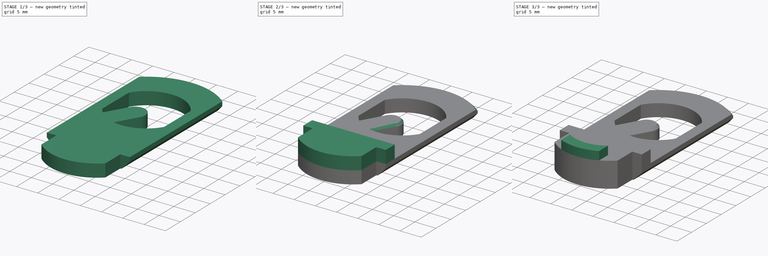
[diagram: build sequence overview — one tinted view per stage of 3, left to right]
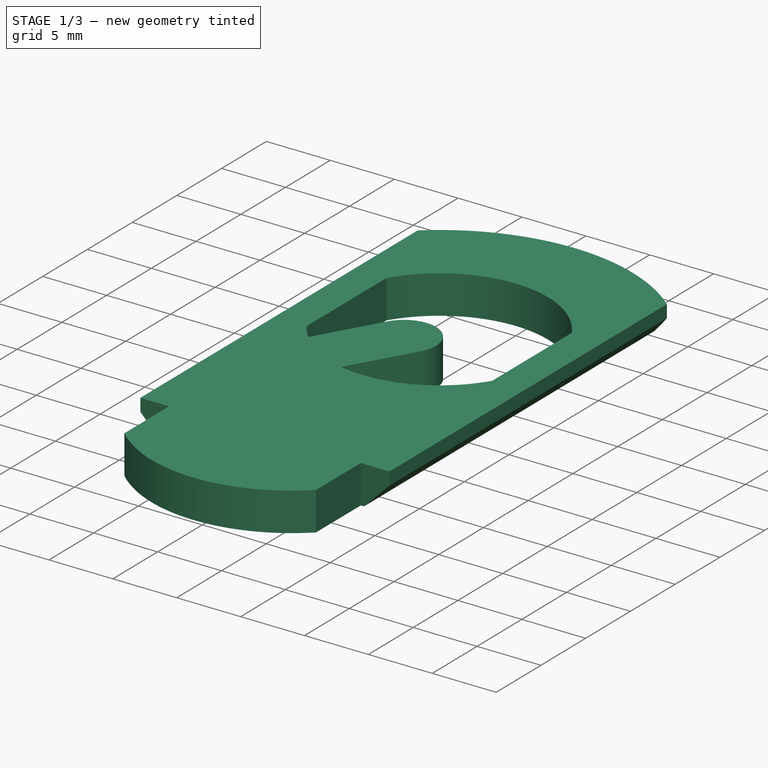
[diagram: stage 1 of 3 — iso view after this stage's code; geometry added in this stage tinted green]
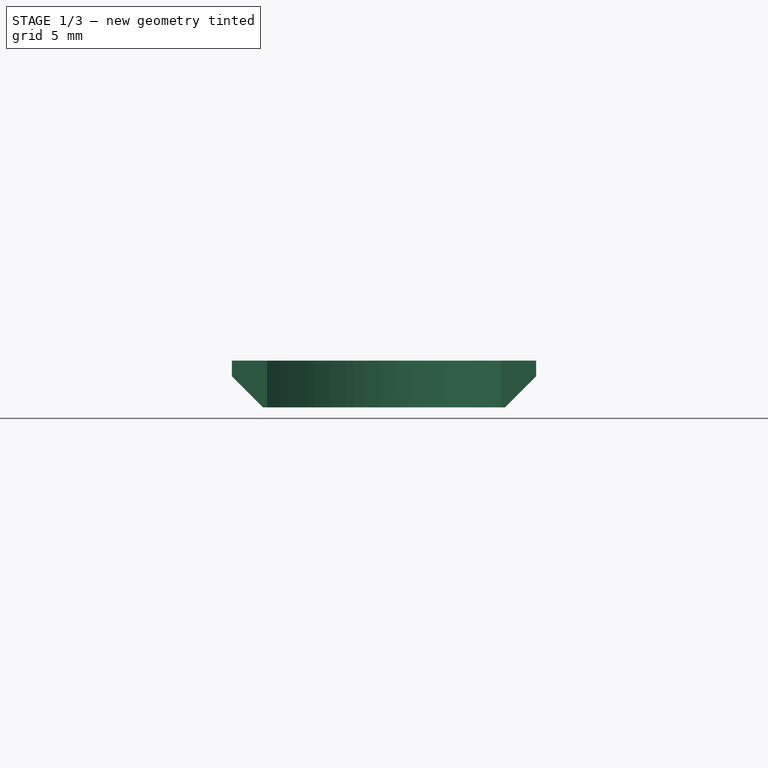
[diagram: stage 1 of 3 — front view after this stage's code; geometry added in this stage tinted green]
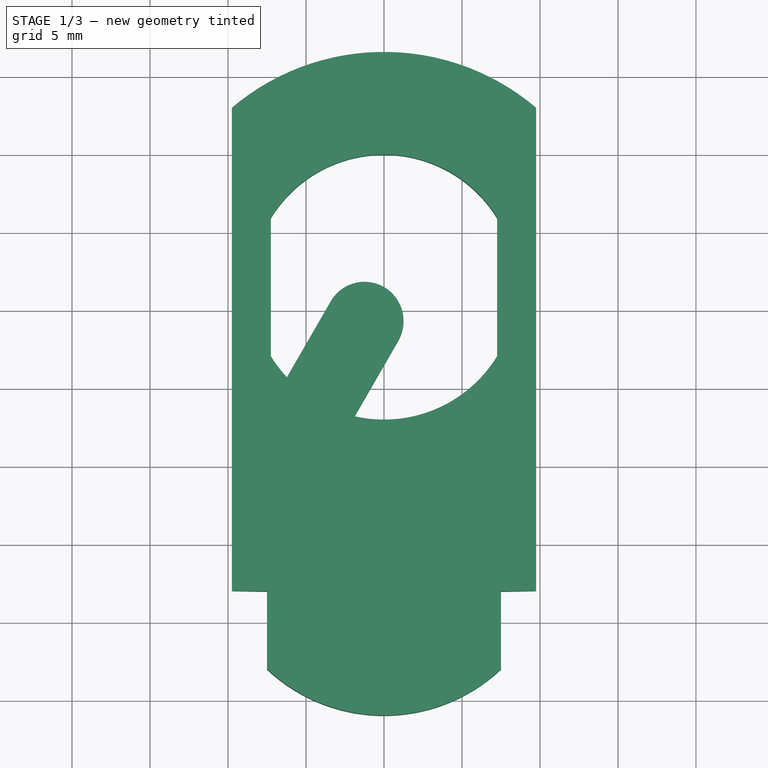
[diagram: stage 1 of 3 — top view after this stage's code; geometry added in this stage tinted green]
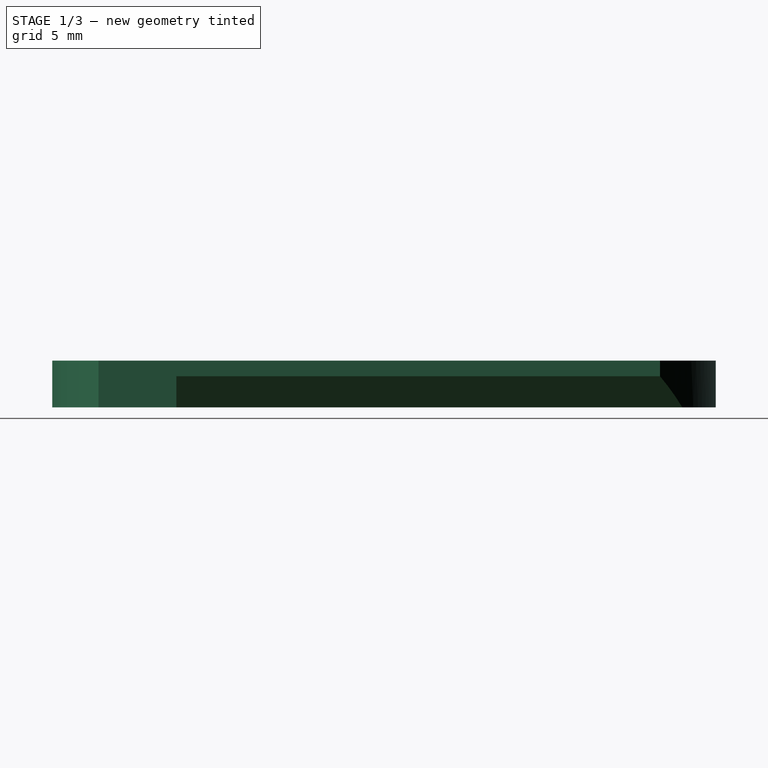
[diagram: stage 1 of 3 — right view after this stage's code; geometry added in this stage tinted green]
FCSTD DOCUMENT  (FreeCAD 0.17R13528 (Git))
Label: dic slider
License: All rights reserved
LicenseURL: http://en.wikipedia.org/wiki/All_rights_reserved
objects: Sketcher::SketchObject×3, Part::Extrusion×3, Part::Chamfer×2, PartDesign::Body×1, Part::MultiFuse×1
note: 10 computed .brp shape members not serialized (recipe doc carries the construction recipe); baked Part::Feature solids carry a one-line shape summary decoded from their .brp

FEATURE [Sketcher::SketchObject] Sketch
  MapMode = 5
  Support = -> [XY_Plane]
  sketch-geometry (22):
    g0: LineSegment [constr] StartX=-9.75 StartY=28 StartZ=0 EndX=9.75 EndY=28 EndZ=0
    g1: LineSegment StartX=9.75 StartY=28 StartZ=0 EndX=9.75 EndY=0 EndZ=0
    g2: LineSegment [constr] StartX=9.75 StartY=0 StartZ=0 EndX=-9.75 EndY=0 EndZ=0
    g3: LineSegment StartX=-9.75 StartY=0 StartZ=0 EndX=-9.75 EndY=28 EndZ=0
    g4: ArcOfCircle CenterX=0 CenterY=16.5 CenterZ=0 NormalX=0 NormalY=0 NormalZ=1 AngleXU=0 Radius=8.5 StartAngle=0.549202 EndAngle=2.59239
    g5: ArcOfCircle CenterX=0 CenterY=16.5 CenterZ=0 NormalX=0 NormalY=0 NormalZ=1 AngleXU=0 Radius=15.0769 StartAngle=0.867566 EndAngle=2.27403
    g6: LineSegment StartX=-7.25 StartY=20.9371 StartZ=0 EndX=-7.25 EndY=12.0629 EndZ=0
    g7: LineSegment StartX=7.25 StartY=20.9371 StartZ=0 EndX=7.25 EndY=12.0629 EndZ=0
    g8: ArcOfCircle CenterX=0 CenterY=16.5 CenterZ=0 NormalX=0 NormalY=0 NormalZ=1 AngleXU=0 Radius=8.5 StartAngle=3.69079 EndAngle=3.89026
    g9: LineSegment StartX=-9.75 StartY=0 StartZ=0 EndX=-9.75 EndY=-3 EndZ=0
    g10: LineSegment StartX=-9.75 StartY=-3 StartZ=0 EndX=-7.5 EndY=-3 EndZ=0
    g11: LineSegment StartX=-7.5 StartY=-3 StartZ=0 EndX=-7.5 EndY=-8 EndZ=0
    g12: LineSegment [constr] StartX=-7.5 StartY=-8 StartZ=0 EndX=7.5 EndY=-8 EndZ=0
    g13: LineSegment StartX=7.5 StartY=-8 StartZ=0 EndX=7.5 EndY=-3 EndZ=0
    g14: LineSegment StartX=7.5 StartY=-3 StartZ=0 EndX=9.75 EndY=-3 EndZ=0
    g15: LineSegment StartX=9.75 StartY=-3 StartZ=0 EndX=9.75 EndY=0 EndZ=0
    g16: ArcOfCircle CenterX=0 CenterY=0 CenterZ=0 NormalX=0 NormalY=0 NormalZ=1 AngleXU=0 Radius=10.9659 StartAngle=3.95924 EndAngle=5.46554
    g17: LineSegment [constr] StartX=0 StartY=16.5 StartZ=0 EndX=-4.25 EndY=9.13878 EndZ=0
    g18: ArcOfCircle CenterX=-1.25 CenterY=14.3349 CenterZ=0 NormalX=0 NormalY=0 NormalZ=1 AngleXU=0 Radius=2.5 StartAngle=5.75959 EndAngle=8.90118
    g19: ArcOfCircle CenterX=0 CenterY=16.5 CenterZ=0 NormalX=0 NormalY=0 NormalZ=1 AngleXU=0 Radius=8.5 StartAngle=4.48732 EndAngle=5.73398
    g20: LineSegment StartX=-3.41506 StartY=15.5849 StartZ=0 EndX=-6.22708 EndY=10.7144 EndZ=0
    g21: LineSegment StartX=0.915063 StartY=13.0849 StartZ=0 EndX=-1.89696 EndY=8.21438 EndZ=0
  constraints (61):
    c: Coincident(g0,g1)
    c: Coincident(g1,g2)
    c: Coincident(g2,g3)
    c: Coincident(g3,g0)
    c: Horizontal(g2)
    c: Vertical(g1)
    c: Vertical(g3)
    c: Symmetric(g0,g0,g-2)
    c: DistanceY(g-1,g0) = 28
    c: DistanceX(g0,g0) = 19.5
    c: DistanceY(g1,g-1) = 0
    c: DistanceY(g-1,g4) = 16.5
    c: Radius(g4) = 8.5
    c: Coincident(g5,g4)
    c: Coincident(g5,g0)
    c: Coincident(g5,g0)
    c: Vertical(g6)
    c: Vertical(g7)
    c: Coincident(g4,g7)
    c: Coincident(g19,g7)
    c: Equal(g4,g8)
    c: Coincident(g4,g6)
    c: Coincident(g8,g6)
    c: Coincident(g4,g8)
    c: DistanceX(g0,g4) = 2.5
    c: DistanceX(g4,g0) = 2.5
    c: Coincident(g2,g9)
    c: Vertical(g9)
    c: Coincident(g9,g10)
    c: Horizontal(g10)
    c: Coincident(g10,g11)
    c: Vertical(g11)
    c: Coincident(g11,g12)
    c: Coincident(g12,g13)
    c: Vertical(g13)
    c: Coincident(g13,g14)
    c: Horizontal(g14)
    c: Coincident(g14,g15)
    c: Coincident(g15,g1)
    c: Vertical(g15)
    c: DistanceX(g12,g12) = 15
    c: Symmetric(g11,g12,g-2)
    c: Equal(g15,g9)
    c: DistanceY(g9,g9) = 3
    c: DistanceY(g11,g11) = 5
    c: Coincident(g16,g-1)
    c: Coincident(g16,g12)
    c: Coincident(g16,g11)
    c: Angle(g17,g-2) = 0.523599
    c: Coincident(g17,g4)
    c: PointOnObject(g18,g17)
    c: Radius(g18) = 2.5
    c: PointOnObject(g4,g18)
    c: Angle(g18) = 3.14159
    c: Equal(g8,g19)
    c: Coincident(g8,g19)
    c: Distance(g17) = 8.5
    c: Coincident(g20,g18)
    c: Coincident(g20,g8)
    c: Coincident(g21,g18)
    c: Coincident(g19,g21)
FEATURE [Part::Extrusion] Extrude
  Base = -> Sketch
  Dir = (0,0,1)
  DirMode = 2
  FaceMakerClass = Part::FaceMakerBullseye
  LengthFwd = 3
  LengthRev = 0
  Solid = true
  Symmetric = false
FEATURE [Part::Chamfer] Chamfer
  Base = -> Extrude
  Edges = 4 edges r=2: [Edge3,Edge9,Edge12,Edge29]
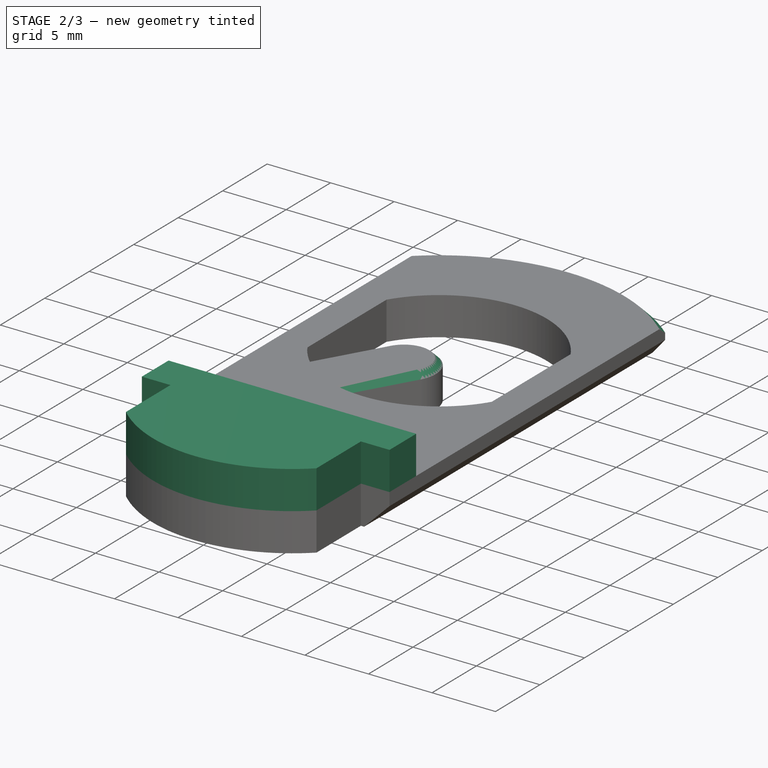
[diagram: stage 2 of 3 — iso view after this stage's code; geometry added in this stage tinted green]
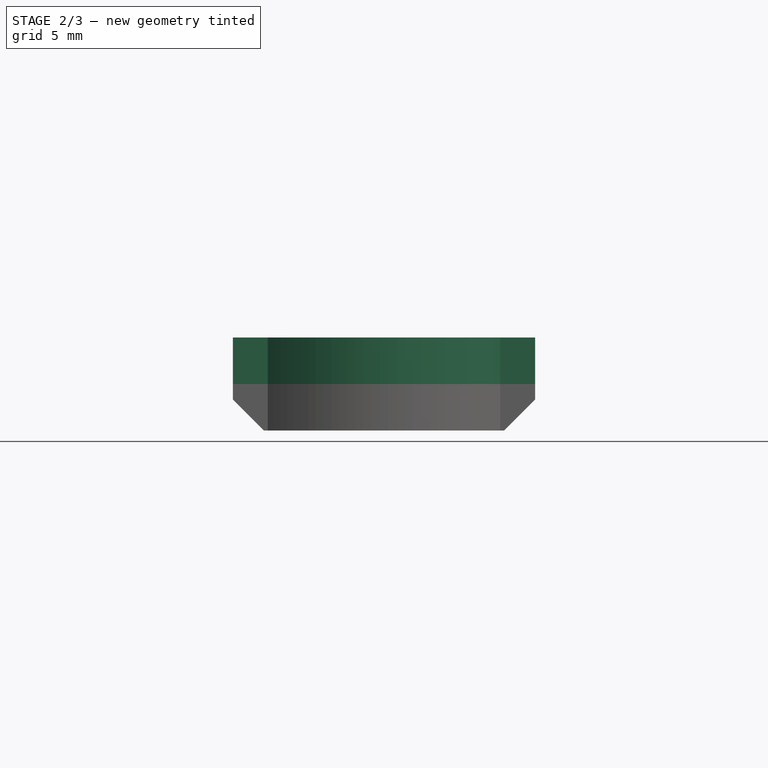
[diagram: stage 2 of 3 — front view after this stage's code; geometry added in this stage tinted green]
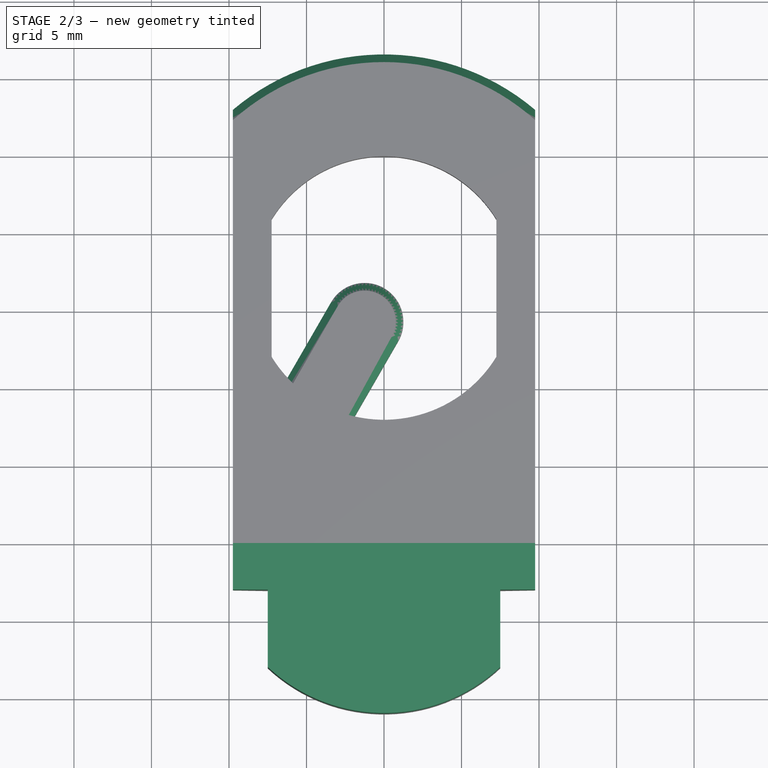
[diagram: stage 2 of 3 — top view after this stage's code; geometry added in this stage tinted green]
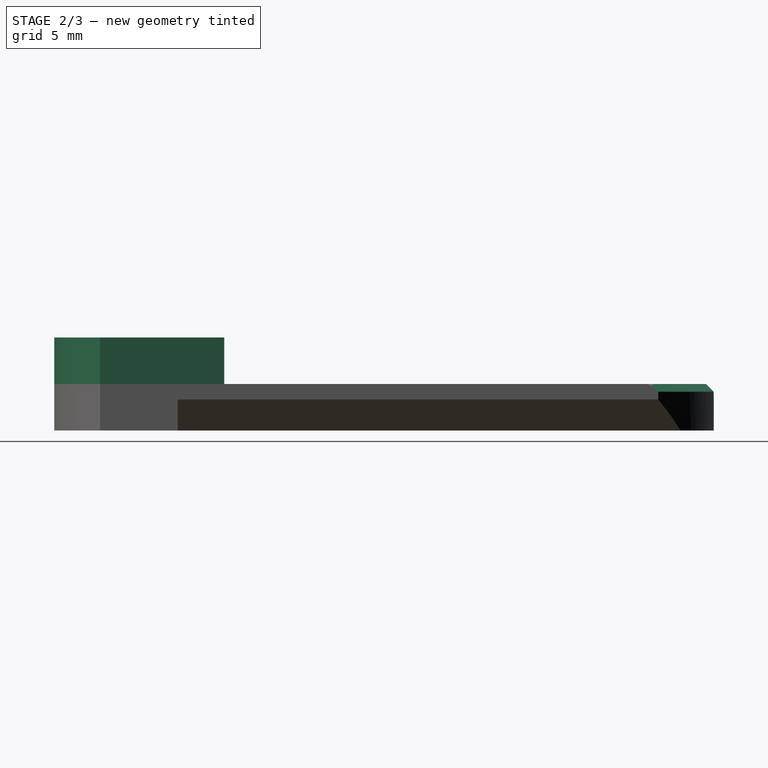
[diagram: stage 2 of 3 — right view after this stage's code; geometry added in this stage tinted green]
FEATURE [Sketcher::SketchObject] Sketch001
  ExternalGeometry = -> [Sketch]
  MapMode = 5
  Placement = pos=(0,0,3) rot=(0,0,1;0rad)
  Support = -> [Chamfer]
  sketch-geometry (8):
    g0: LineSegment StartX=9.75 StartY=0 StartZ=0 EndX=-9.75 EndY=0 EndZ=0
    g1: LineSegment StartX=-9.75 StartY=0 StartZ=0 EndX=-9.75 EndY=-3 EndZ=0
    g2: LineSegment StartX=-9.75 StartY=-3 StartZ=0 EndX=-7.5 EndY=-3 EndZ=0
    g3: LineSegment StartX=-7.5 StartY=-3 StartZ=0 EndX=-7.5 EndY=-8 EndZ=0
    g4: LineSegment StartX=9.75 StartY=0 StartZ=0 EndX=9.75 EndY=-3 EndZ=0
    g5: LineSegment StartX=9.75 StartY=-3 StartZ=0 EndX=7.5 EndY=-3 EndZ=0
    g6: LineSegment StartX=7.5 StartY=-3 StartZ=0 EndX=7.5 EndY=-8 EndZ=0
    g7: ArcOfCircle CenterX=0 CenterY=0 CenterZ=0 NormalX=0 NormalY=0 NormalZ=1 AngleXU=0 Radius=10.9659 StartAngle=3.95924 EndAngle=5.46554
  constraints (17):
    c: Coincident(g-3,g0)
    c: Coincident(g0,g-4)
    c: Coincident(g0,g1)
    c: Coincident(g1,g-5)
    c: Coincident(g1,g2)
    c: Coincident(g2,g-6)
    c: Coincident(g2,g3)
    c: Coincident(g3,g-7)
    c: Coincident(g0,g4)
    c: Coincident(g4,g-9)
    c: Coincident(g4,g5)
    c: Coincident(g5,g-9)
    c: Coincident(g5,g6)
    c: Coincident(g6,g-8)
    c: Coincident(g7,g-1)
    c: Coincident(g7,g6)
    c: Coincident(g7,g3)
FEATURE [Part::Extrusion] Extrude001
  Base = -> Sketch001
  Dir = (0,0,1)
  DirMode = 2
  FaceMakerClass = Part::FaceMakerBullseye
  LengthFwd = 3
  LengthRev = 0
  Solid = true
  Symmetric = false
FEATURE [Part::Chamfer] Chamfer001
  Base = -> Chamfer
  Edges = 2 edges r=0.5: [Edge11,Edge25]
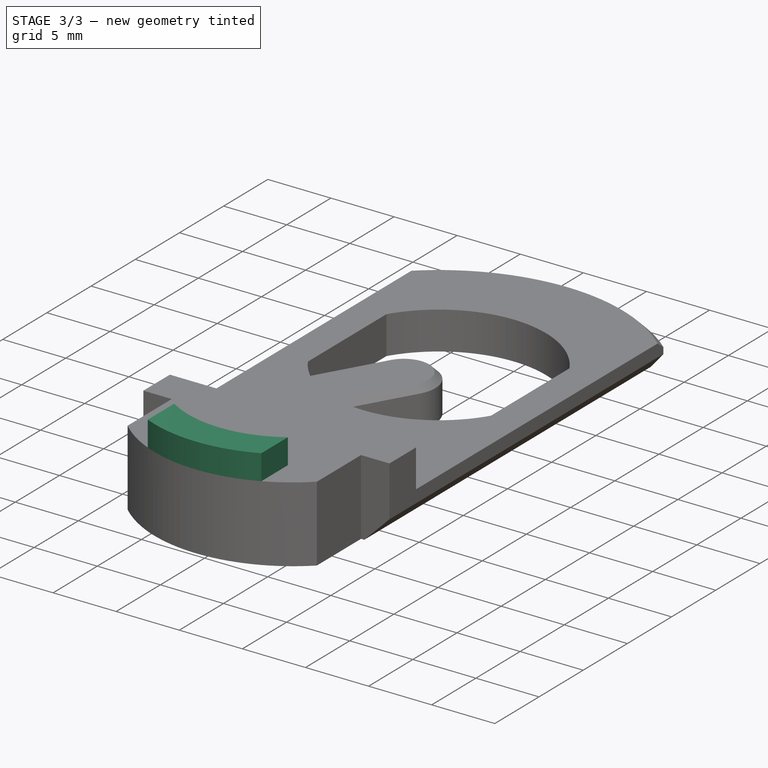
[diagram: stage 3 of 3 — iso view after this stage's code; geometry added in this stage tinted green]
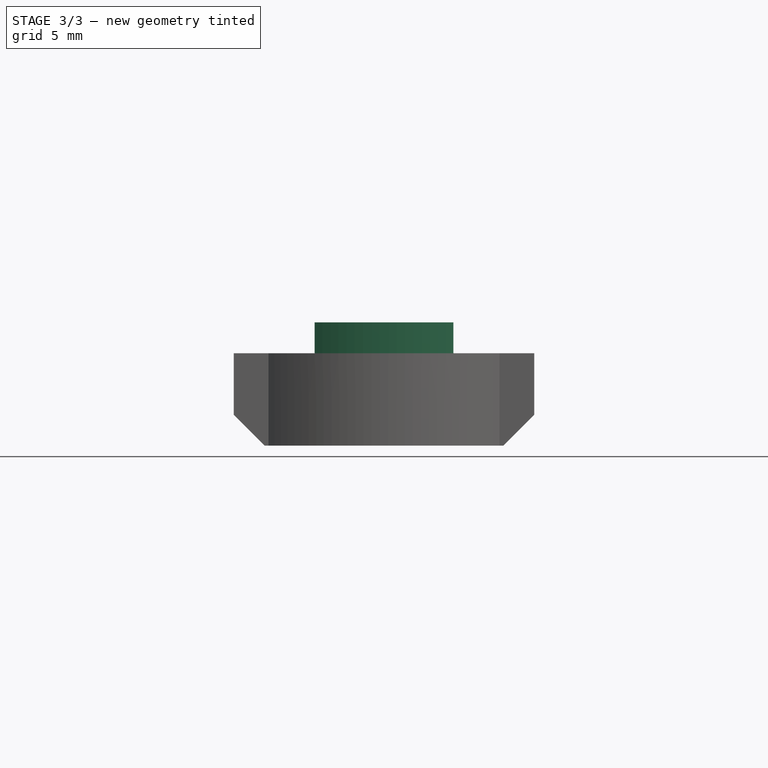
[diagram: stage 3 of 3 — front view after this stage's code; geometry added in this stage tinted green]
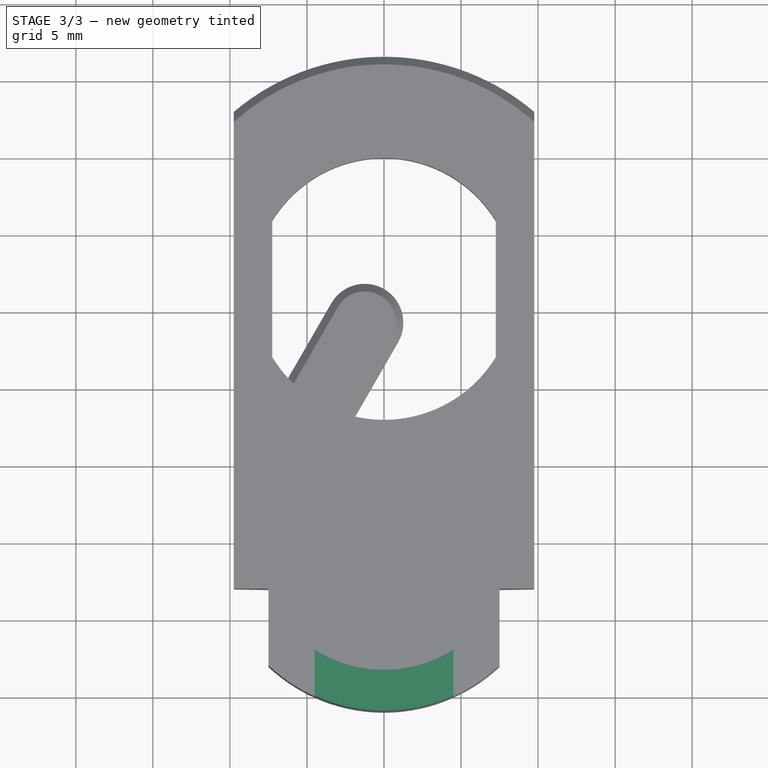
[diagram: stage 3 of 3 — top view after this stage's code; geometry added in this stage tinted green]
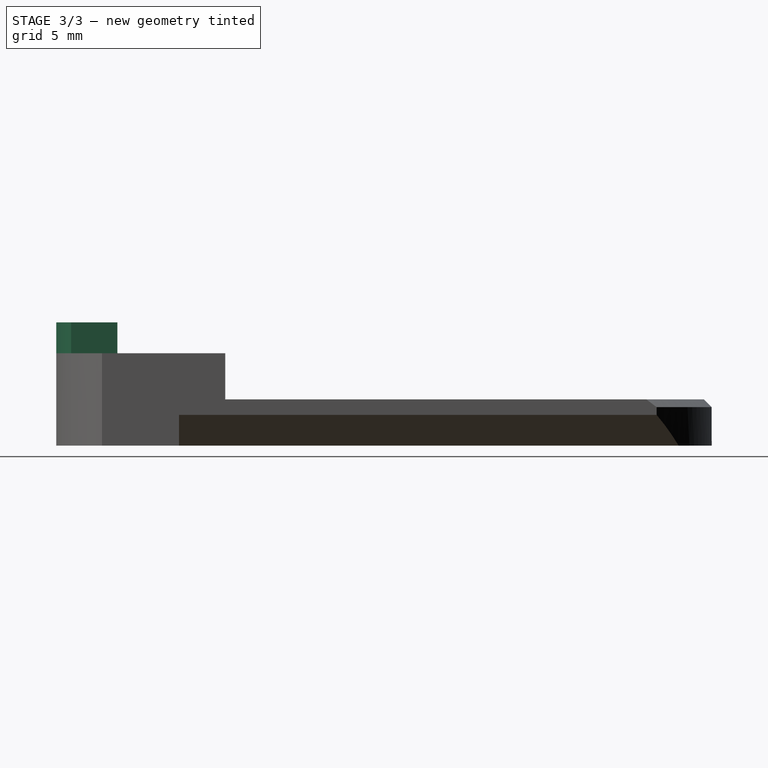
[diagram: stage 3 of 3 — right view after this stage's code; geometry added in this stage tinted green]
FEATURE [Sketcher::SketchObject] Sketch002
  ExternalGeometry = -> [Sketch001]
  MapMode = 5
  Placement = pos=(0,0,6) rot=(0,0,1;0rad)
  Support = -> [Extrude001]
  sketch-geometry (4):
    g0: ArcOfCircle CenterX=0 CenterY=0 CenterZ=0 NormalX=0 NormalY=0 NormalZ=1 AngleXU=0 Radius=10.9659 StartAngle=4.28954 EndAngle=5.13524
    g1: ArcOfCircle CenterX=0 CenterY=0 CenterZ=0 NormalX=0 NormalY=0 NormalZ=1 AngleXU=0 Radius=8.32166 StartAngle=4.14105 EndAngle=5.28373
    g2: LineSegment StartX=4.5 StartY=-7 StartZ=0 EndX=4.5 EndY=-10 EndZ=0
    g3: LineSegment StartX=-4.5 StartY=-7 StartZ=0 EndX=-4.5 EndY=-10 EndZ=0
  constraints (12):
    c: Coincident(g0,g-1)
    c: PointOnObject(g0,g-3)
    c: Coincident(g1,g-1)
    c: Coincident(g2,g1)
    c: Coincident(g2,g0)
    c: Vertical(g2)
    c: Coincident(g3,g1)
    c: Coincident(g3,g0)
    c: Vertical(g3)
    c: DistanceY(g2,g2) = 3
    c: Symmetric(g1,g1,g-2)
    c: DistanceX(g1,g1) = 9
FEATURE [PartDesign::Body] Body
  Group = -> [Sketch,Sketch001,Sketch002]
  Origin = -> Origin
FEATURE [Part::Extrusion] Extrude002
  Base = -> Sketch002
  Dir = (0,0,1)
  DirMode = 2
  FaceMakerClass = Part::FaceMakerBullseye
  LengthFwd = 2
  LengthRev = 0
  Solid = true
  Symmetric = false
FEATURE [Part::MultiFuse] Fusion
  Shapes = -> [Extrude001,Extrude002,Chamfer001]
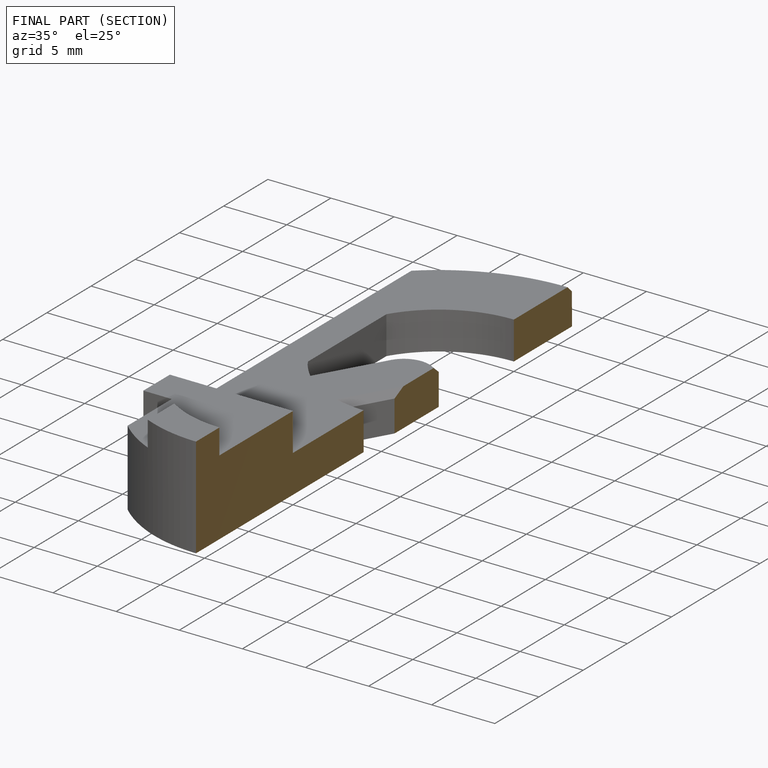
[diagram: finished part — half-section view (interior)]
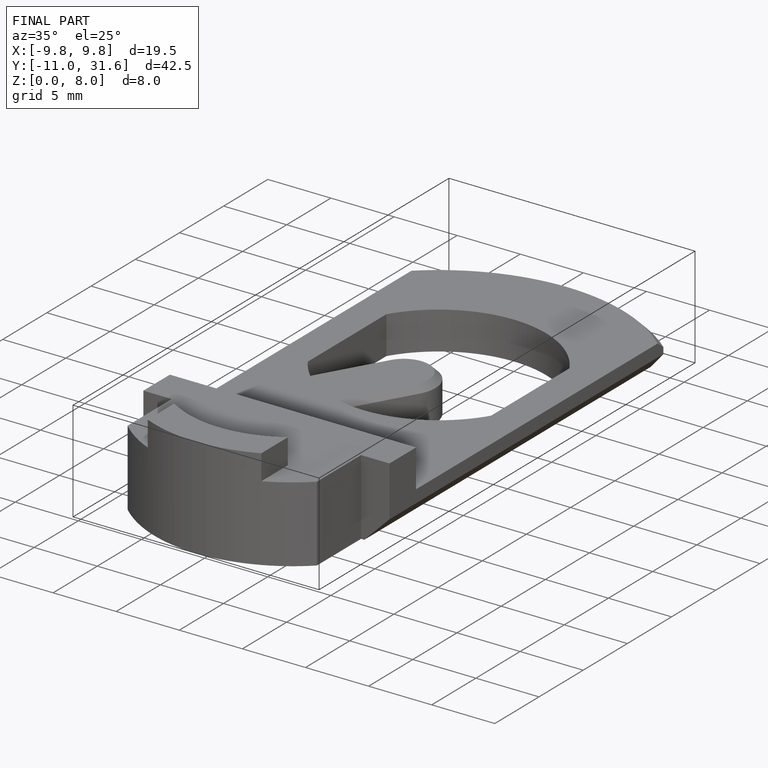
[diagram: finished part — iso view with bounding-box wireframe]
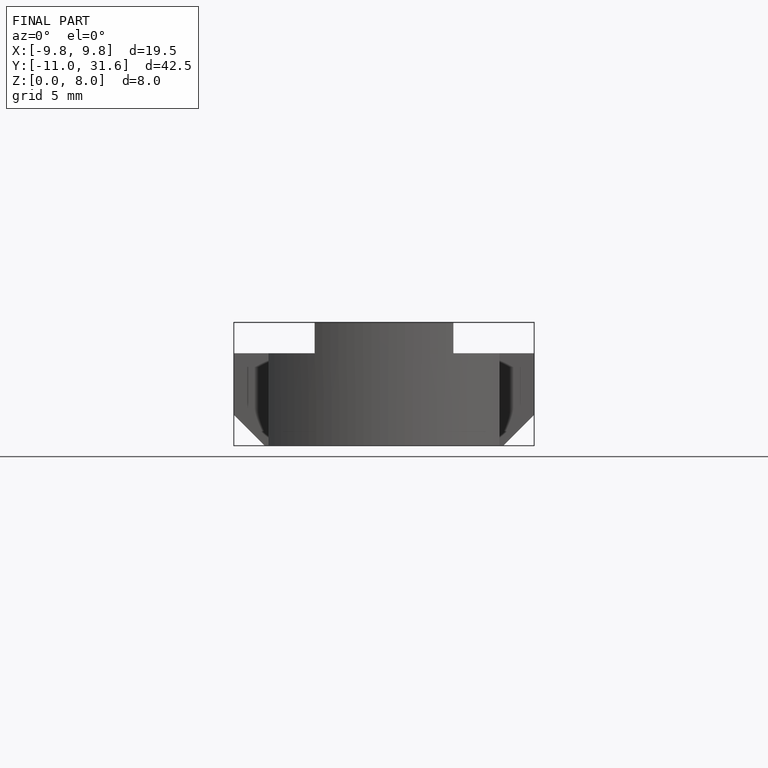
[diagram: finished part — front view with bounding-box wireframe]
